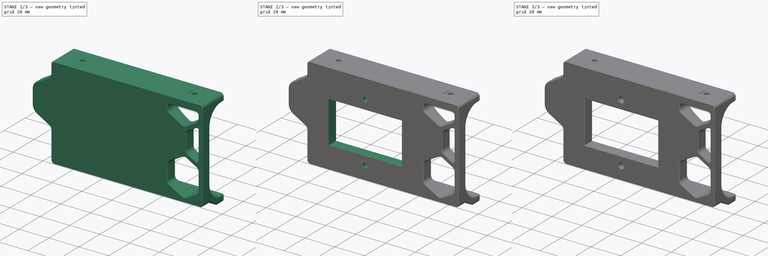
[diagram: build sequence overview — one tinted view per stage of 3, left to right]
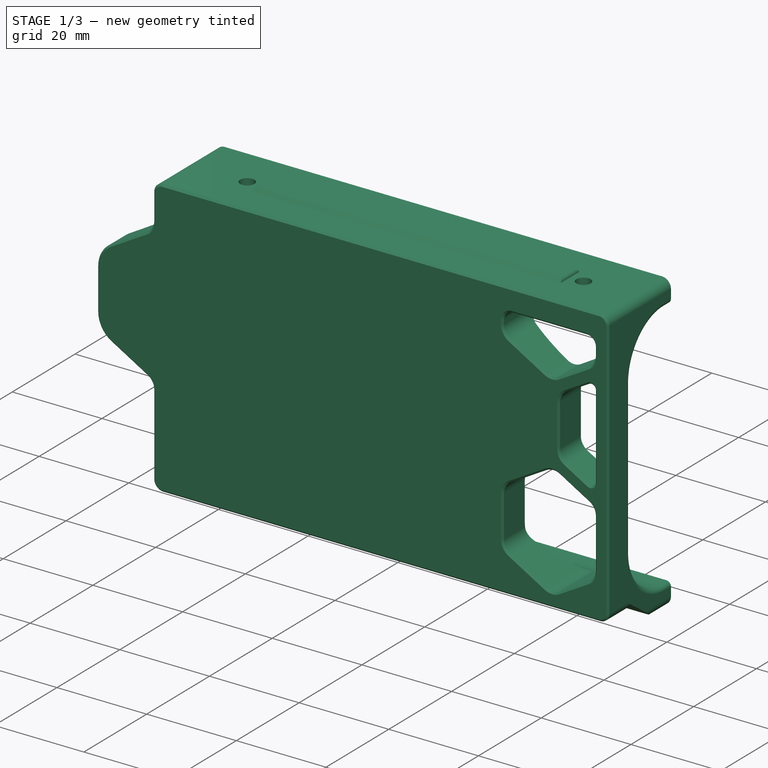
[diagram: stage 1 of 3 — iso view after this stage's code; geometry added in this stage tinted green]
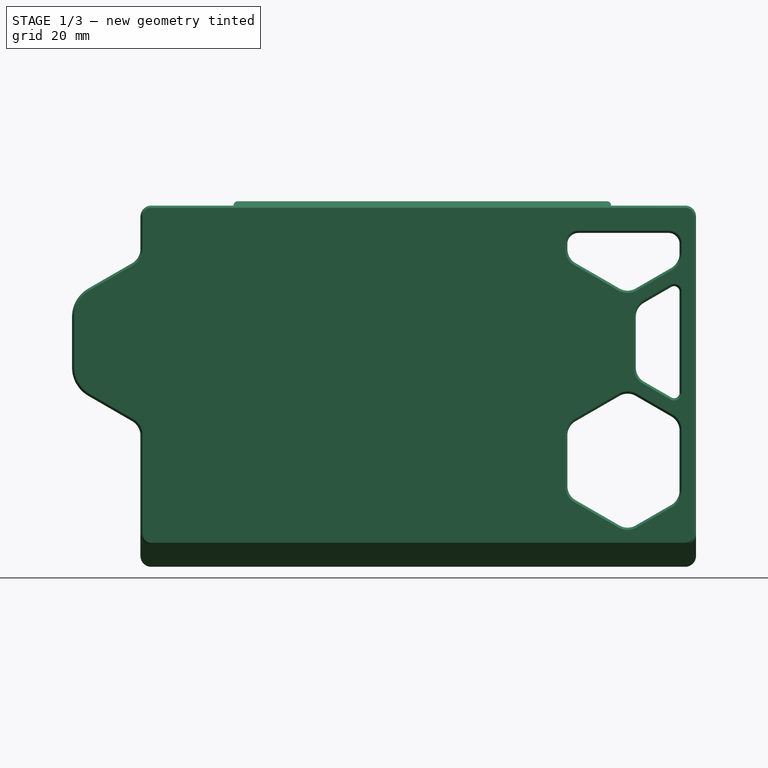
[diagram: stage 1 of 3 — front view after this stage's code; geometry added in this stage tinted green]
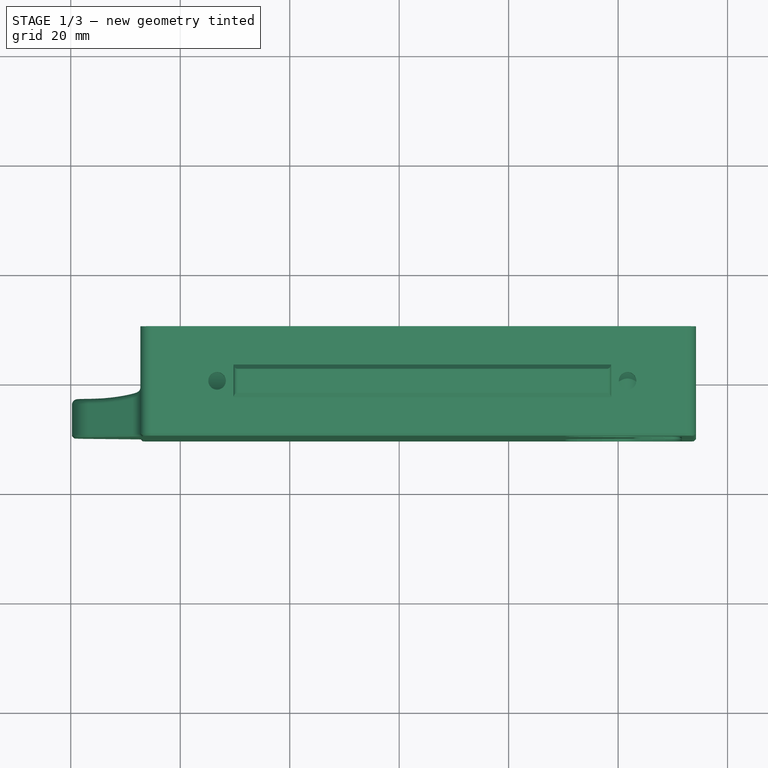
[diagram: stage 1 of 3 — top view after this stage's code; geometry added in this stage tinted green]
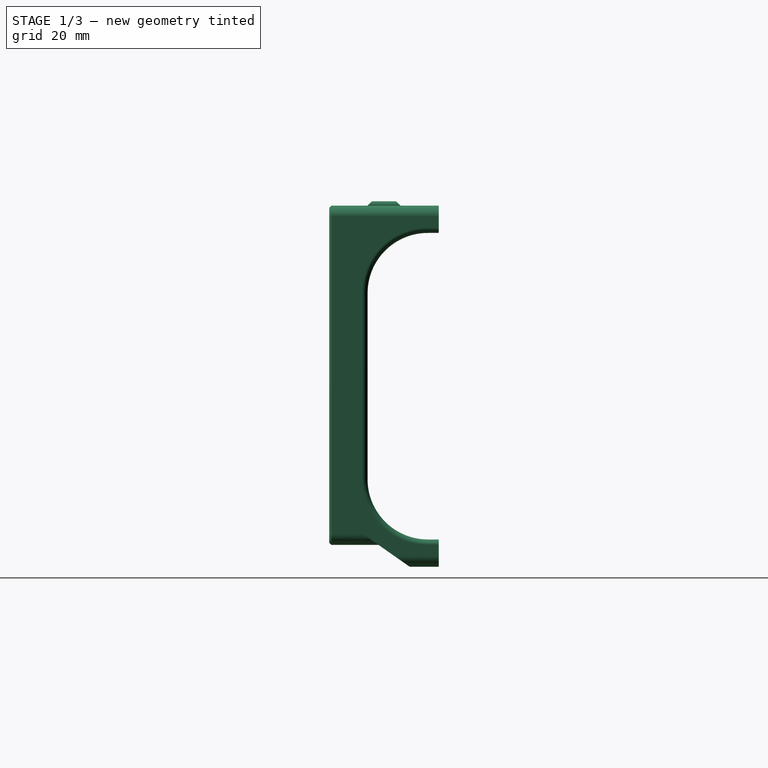
[diagram: stage 1 of 3 — right view after this stage's code; geometry added in this stage tinted green]
FCSTD DOCUMENT  (FreeCAD 1.1R20260414 (Git shallow))
Label: TridentInletSkirt
License: All rights reserved
LicenseURL: https://en.wikipedia.org/wiki/All_rights_reserved
objects: Sketcher::SketchObject×4, PartDesign::Pocket×3, PartDesign::Pad×2, Part::Feature×1, App::Point×1, PartDesign::FeatureBase×1, PartDesign::Chamfer×1, PartDesign::Body×1
note: 30 computed .brp shape members not serialized (recipe doc carries the construction recipe); baked Part::Feature solids carry a one-line shape summary decoded from their .brp

FEATURE [Part::Feature] Part__Feature1011  label="rear_skirt_power_filtered"
  shape: bbox 114.5 x 20 x 66.8 mm, 212 faces (baked)
FEATURE [App::Point] Origin001
  Role = Origin
FEATURE [PartDesign::FeatureBase] BaseFeature
  BaseFeature = -> Part__Feature1011
  Suppressed = false
FEATURE [Sketcher::SketchObject] Sketch001  label="RemoveExistingCutoutsSketch"
  ArcFitTolerance = 1e-06
  AttachmentSupport = -> [BaseFeature]
  ExternalGeometry = -> [BaseFeature]
  ExternalTypes = [0,0]
  FullyConstrained = true
  MakeInternals = false
  MapMode = 5
  Placement = pos=(-1.33711e-11,549.572,5.5e-15) rot=(1,0,0;1.5708rad)
  _ExternalGeoVersion = 1
  sketch-geometry (4):
    g0: LineSegment StartX=-138.674 StartY=103.334 StartZ=0 EndX=-138.674 EndY=68.0342 EndZ=0
    g1: LineSegment StartX=-138.674 StartY=68.0342 StartZ=0 EndX=-70.5743 EndY=68.0342 EndZ=0
    g2: LineSegment StartX=-70.5743 StartY=68.0342 StartZ=0 EndX=-70.5743 EndY=103.334 EndZ=0
    g3: LineSegment StartX=-70.5743 StartY=103.334 StartZ=0 EndX=-138.674 EndY=103.334 EndZ=0
  constraints (10):
    c: Coincident(g0,g1)
    c: Coincident(g1,g2)
    c: Coincident(g2,g3)
    c: Coincident(g3,g0)
    c: Vertical(g2)
    c: Horizontal(g1)
    c: Horizontal(g3)
    c: Coincident(g0,g-4)
    c: Coincident(g0,g-4)
    c: Tangent(g-3,g2)
FEATURE [PartDesign::Pad] Pad  label="RemoveExistingCutoutsPad"
  BaseFeature = -> BaseFeature
  Direction = (2.43e-14,-1,2e-16)
  Length = 7
  Length2 = 10
  Profile = -> Sketch001
  ReferenceAxis = -> Sketch001 [N_Axis]
  Refine = true
  Reversed = true
  SideType = 0
  Suppressed = false
  Type = 0
  Type2 = 0
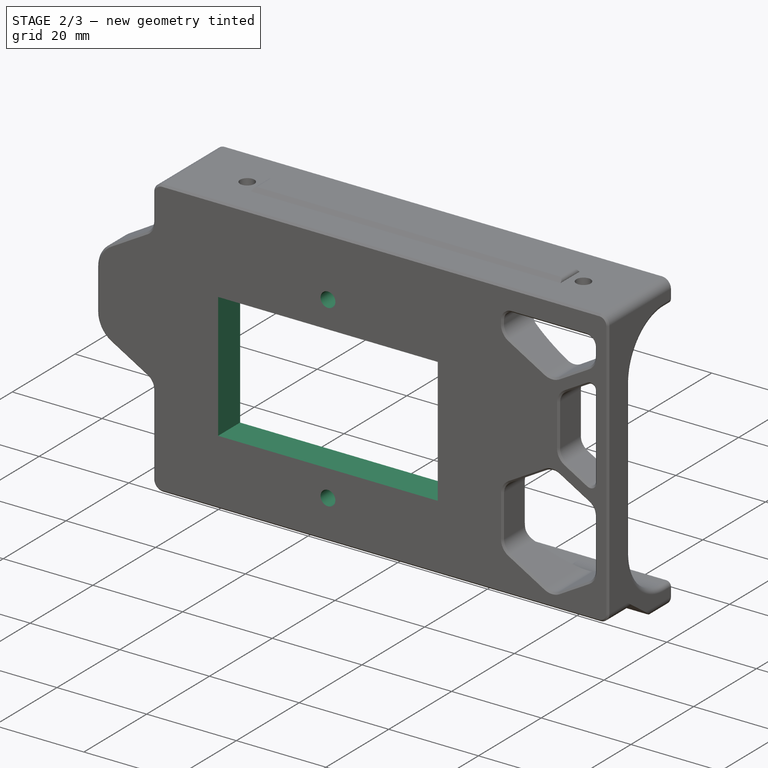
[diagram: stage 2 of 3 — iso view after this stage's code; geometry added in this stage tinted green]
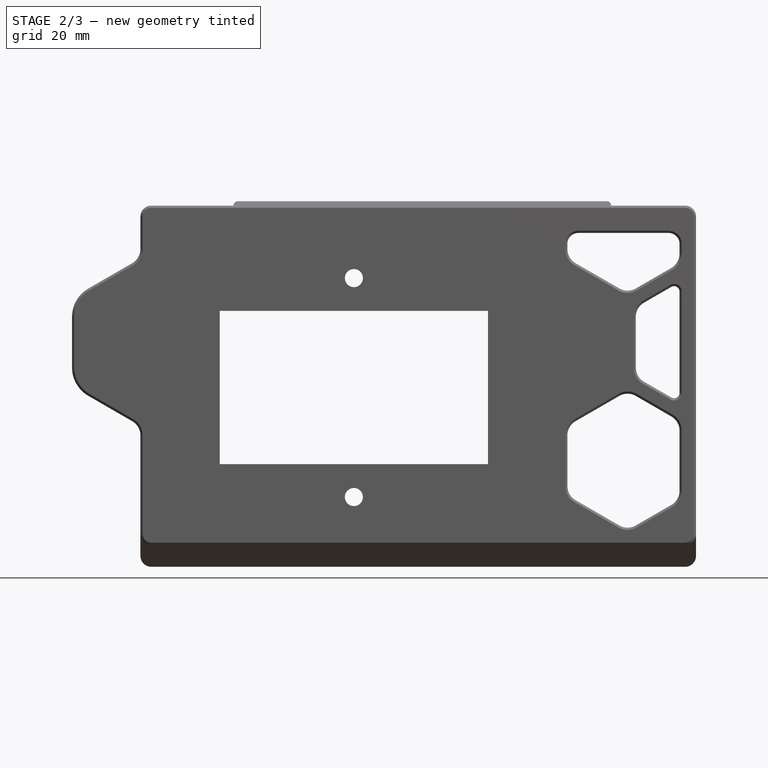
[diagram: stage 2 of 3 — front view after this stage's code; geometry added in this stage tinted green]
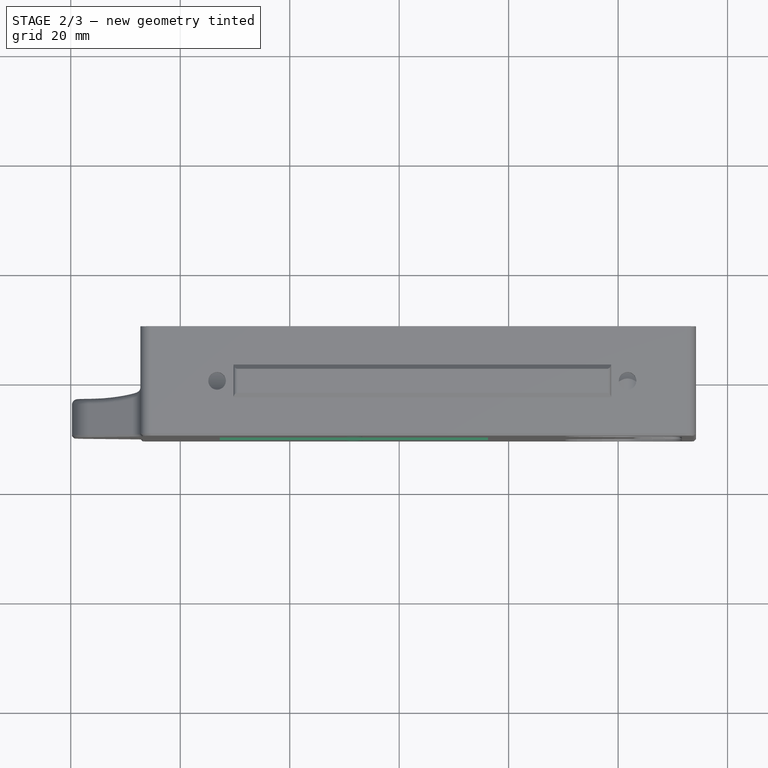
[diagram: stage 2 of 3 — top view after this stage's code; geometry added in this stage tinted green]
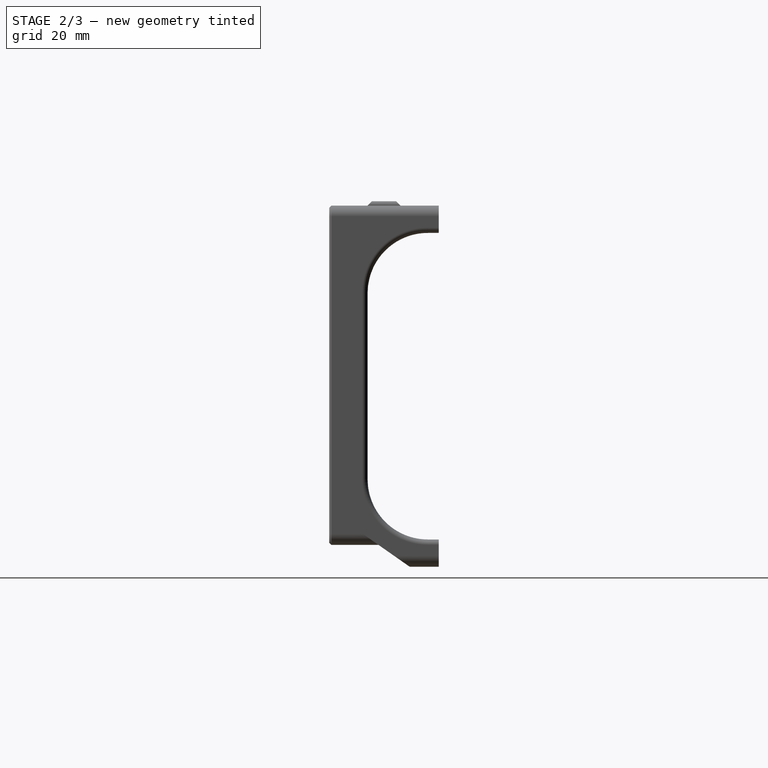
[diagram: stage 2 of 3 — right view after this stage's code; geometry added in this stage tinted green]
FEATURE [Sketcher::SketchObject] Sketch  label="InletCutoutSketch"
  ArcFitTolerance = 1e-06
  AttachmentSupport = -> [Pad]
  ExternalGeometry = -> [Pad]
  ExternalTypes = [0,0]
  FullyConstrained = true
  MakeInternals = false
  MapMode = 5
  Placement = pos=(-2.98879e-11,556.572,-1.7276e-11) rot=(0,0.707107,0.707107;3.14159rad)
  _ExternalGeoVersion = 1
  sketch-geometry (6):
    g0: Circle CenterX=108.274 CenterY=105.434 CenterZ=0 NormalX=0 NormalY=0 NormalZ=1 AngleXU=0 Radius=1.65
    g1: Circle CenterX=108.274 CenterY=65.4341 CenterZ=0 NormalX=0 NormalY=0 NormalZ=1 AngleXU=0 Radius=1.65
    g2: LineSegment StartX=132.774 StartY=99.4341 StartZ=0 EndX=83.7743 EndY=99.4341 EndZ=0
    g3: LineSegment StartX=83.7743 StartY=99.4341 StartZ=0 EndX=83.7743 EndY=71.4341 EndZ=0
    g4: LineSegment StartX=83.7743 StartY=71.4341 StartZ=0 EndX=132.774 EndY=71.4341 EndZ=0
    g5: LineSegment StartX=132.774 StartY=71.4341 StartZ=0 EndX=132.774 EndY=99.4341 EndZ=0
  constraints (18):
    c: Vertical(g1,g0)
    c: Diameter(g0) = 3.3
    c: DistanceY(g1,g0) = 40
    c: Equal(g0,g1)
    c: Horizontal(g2)
    c: Vertical(g3)
    c: Horizontal(g4)
    c: Coincident(g5,g4)
    c: Coincident(g5,g2)
    c: Vertical(g5)
    c: DistanceY(g5,g5) = 28
    c: DistanceX(g3,g2) = 49
    c: DistanceX(g0,g2) = 24.5
    c: Distance(g0,g2) = 6
    c: Coincident(g2,g3)
    c: Coincident(g4,g3)
    c: DistanceX(g4,g-3) = 13.5
    c: DistanceY(g-3,g4) = 2.75
FEATURE [Sketcher::SketchObject] Sketch002  label="AddInletSupportSketch"
  ArcFitTolerance = 1e-06
  AttachmentSupport = -> [Pad]
  ExternalGeometry = -> [Pad]
  ExternalTypes = [0]
  FullyConstrained = true
  MakeInternals = false
  MapMode = 5
  Placement = pos=(-2.98879e-11,556.572,-1.7276e-11) rot=(0,0.707107,0.707107;3.14159rad)
  _ExternalGeoVersion = 1
  sketch-geometry (6):
    g0: LineSegment StartX=108.274 StartY=110.434 StartZ=0 EndX=138.024 EndY=99.1841 EndZ=0
    g1: LineSegment StartX=138.024 StartY=99.1841 StartZ=0 EndX=138.024 EndY=72.1841 EndZ=0
    g2: LineSegment StartX=138.024 StartY=72.1841 StartZ=0 EndX=108.274 EndY=60.9341 EndZ=0
    g3: LineSegment StartX=108.274 StartY=60.9341 StartZ=0 EndX=78.5243 EndY=72.1841 EndZ=0
    g4: LineSegment StartX=78.5243 StartY=72.1841 StartZ=0 EndX=78.5243 EndY=99.1841 EndZ=0
    g5: LineSegment StartX=78.5243 StartY=99.1841 StartZ=0 EndX=108.274 EndY=110.434 EndZ=0
  constraints (18):
    c: Coincident(g1,g0)
    c: Coincident(g2,g1)
    c: Coincident(g3,g2)
    c: Coincident(g4,g3)
    c: Vertical(g4)
    c: Coincident(g5,g4)
    c: Coincident(g5,g0)
    c: Vertical(g1)
    c: Horizontal(g0,g4)
    c: Horizontal(g3,g1)
    c: DistanceY(g2,g0) = 49.5
    c: Equal(g3,g2)
    c: Vertical(g0,g2)
    c: DistanceX(g4,g0) = 59.5
    c: Parallel(g0,g3)
    c: DistanceY(g1,g1) = 27
    c: DistanceX(g1,g-3) = 8.25
    c: DistanceY(g-3,g1) = 3.5
FEATURE [PartDesign::Pad] Pad001  label="AddInletSupportPad"
  BaseFeature = -> Pad
  Direction = (-5.37e-14,1,-3.13e-14)
  Length = 7
  Length2 = 10
  Profile = -> Sketch002
  ReferenceAxis = -> Sketch002 [N_Axis]
  Refine = true
  Reversed = true
  SideType = 0
  Suppressed = false
  Type = 0
  Type2 = 0
FEATURE [PartDesign::Pocket] Pocket  label="ClearInletSupportPocket"
  BaseFeature = -> Pad001
  Direction = (5.37e-14,-1,3.13e-14)
  Length = 5
  Length2 = 5
  Profile = -> Sketch002
  ReferenceAxis = -> Sketch002 [N_Axis]
  Refine = true
  Reversed = true
  SideType = 0
  Suppressed = false
  Type = 1
  Type2 = 0
FEATURE [PartDesign::Pocket] Pocket001  label="InletCutoutPocket"
  BaseFeature = -> Pocket
  Direction = (5.37e-14,-1,3.13e-14)
  Length = 5
  Length2 = 5
  Profile = -> Sketch
  ReferenceAxis = -> Sketch [N_Axis]
  Refine = true
  SideType = 0
  Suppressed = false
  Type = 1
  Type2 = 0
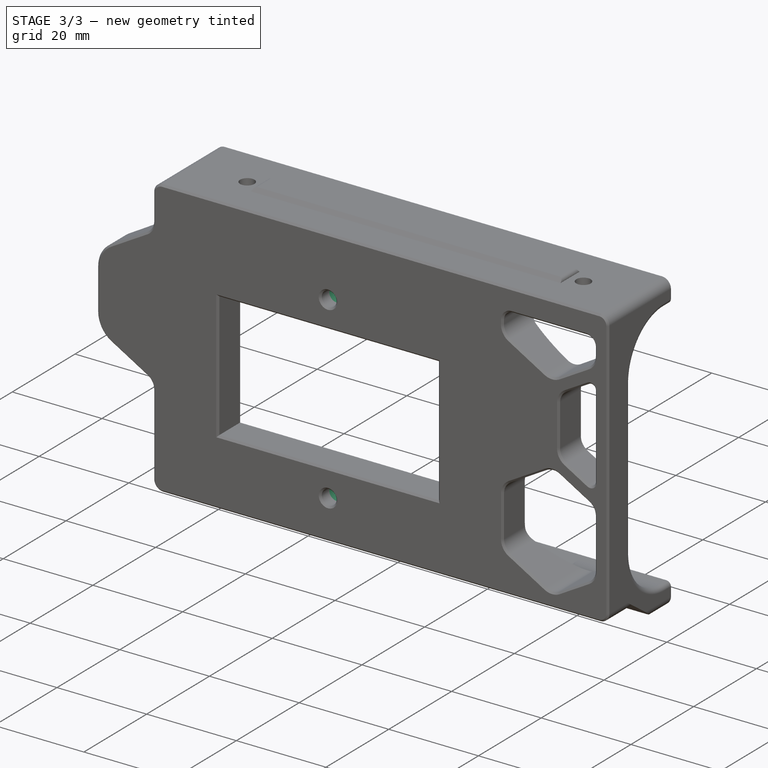
[diagram: stage 3 of 3 — iso view after this stage's code; geometry added in this stage tinted green]
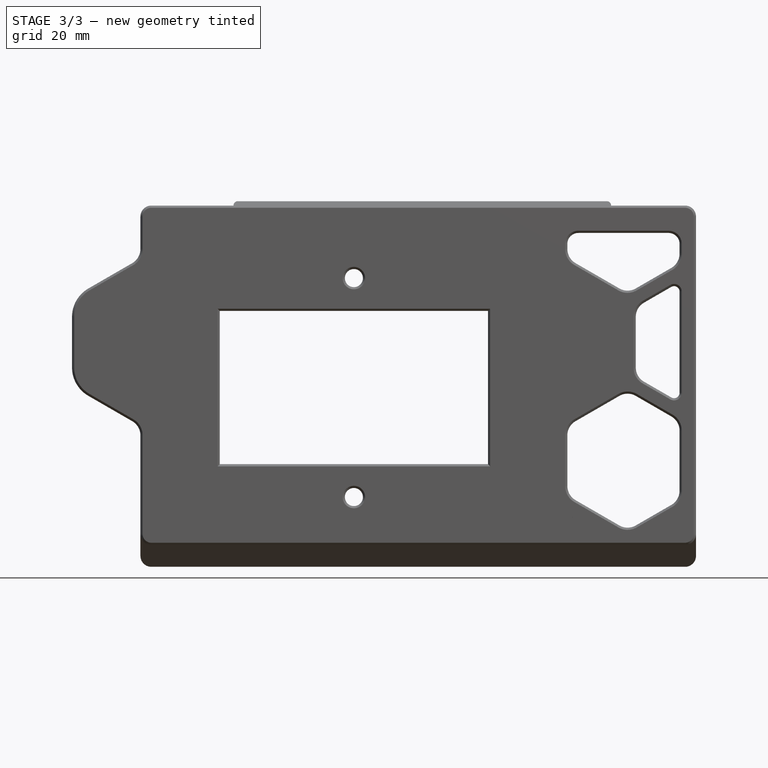
[diagram: stage 3 of 3 — front view after this stage's code; geometry added in this stage tinted green]
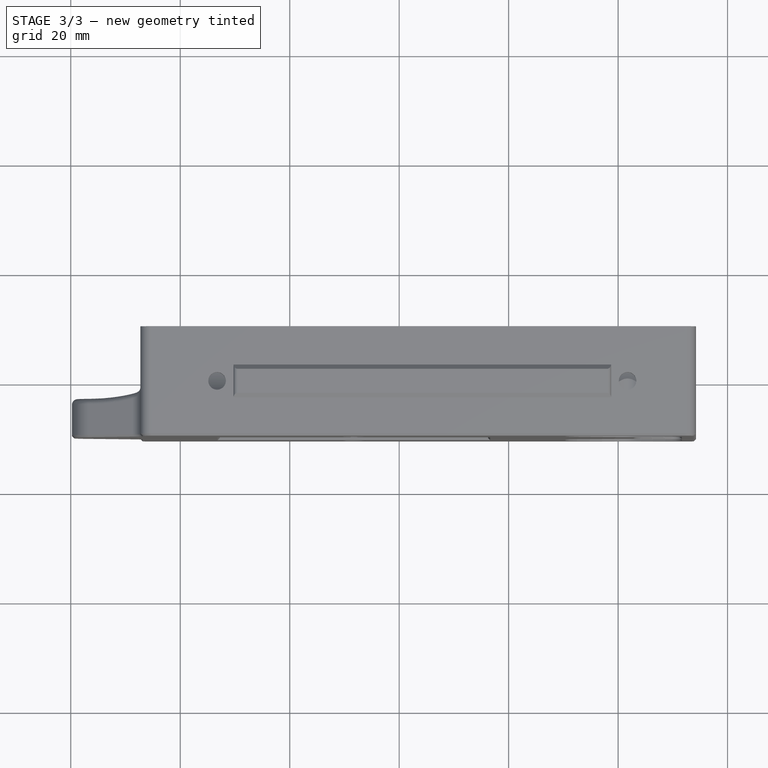
[diagram: stage 3 of 3 — top view after this stage's code; geometry added in this stage tinted green]
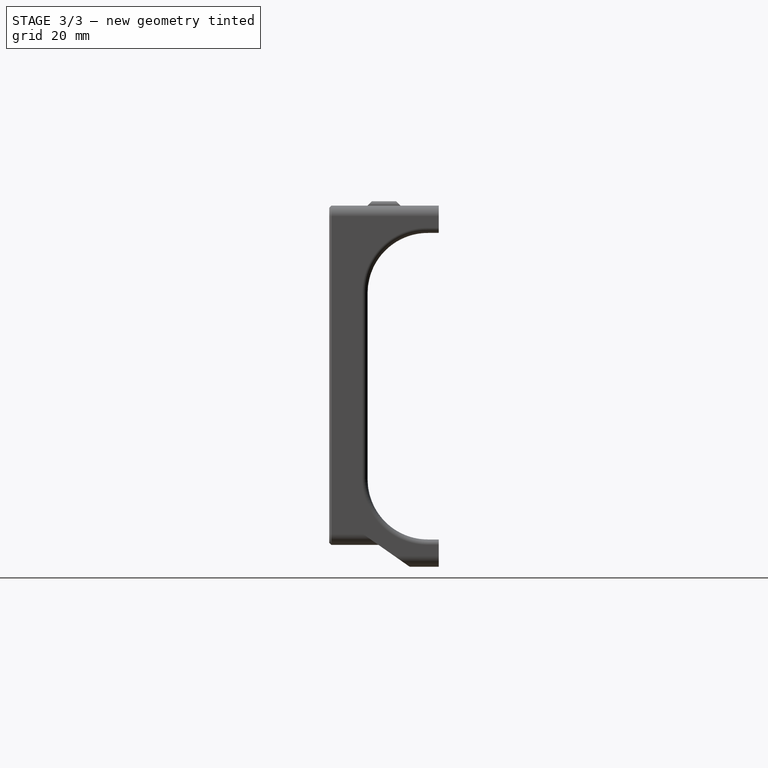
[diagram: stage 3 of 3 — right view after this stage's code; geometry added in this stage tinted green]
FEATURE [Sketcher::SketchObject] Sketch003  label="HeatsetInsertSketch"
  ArcFitTolerance = 1e-06
  AttachmentSupport = -> [Pocket001]
  ExternalGeometry = -> [Pocket001]
  ExternalTypes = [0,0]
  FullyConstrained = true
  MakeInternals = false
  MapMode = 5
  Placement = pos=(-3.00883e-11,556.572,-1.46768e-11) rot=(0,0.707107,0.707107;3.14159rad)
  _ExternalGeoVersion = 1
  sketch-geometry (2):
    g0: Circle CenterX=108.274 CenterY=105.434 CenterZ=0 NormalX=0 NormalY=0 NormalZ=1 AngleXU=0 Radius=2.35
    g1: Circle CenterX=108.274 CenterY=65.4341 CenterZ=0 NormalX=0 NormalY=0 NormalZ=1 AngleXU=0 Radius=2.35
  constraints (4):
    c: Coincident(g0,g-3)
    c: Coincident(g1,g-4)
    c: Diameter(g0) = 4.7
    c: Equal(g0,g1)
FEATURE [PartDesign::Pocket] Pocket002  label="HeatsetInsertPocket"
  BaseFeature = -> Pocket001
  Direction = (5.41e-14,-1,2.65e-14)
  Length = 4.2
  Length2 = 5
  Profile = -> Sketch003
  ReferenceAxis = -> Sketch003 [N_Axis]
  Refine = true
  SideType = 0
  Suppressed = false
  Type = 0
  Type2 = 0
FEATURE [PartDesign::Chamfer] Chamfer  label="BottomFeaturesChamfer"
  Angle = 45
  Base = -> Pocket002 [Edge59,Edge62,Edge61,Edge60,Edge46,Edge63]
  BaseFeature = -> Pocket002
  ChamferType = 0
  FlipDirection = false
  Refine = true
  Size = 0.4
  Size2 = 1
  SupportTransform = false
  Suppressed = false
  UseAllEdges = false
FEATURE [PartDesign::Body] Body  label="Ender3"
  AllowCompound = true
  BaseFeature = -> Part__Feature1011
  Group = -> [BaseFeature,Sketch001,Pad,Sketch,Sketch002,Pad001,Pocket,Pocket001,Sketch003,Pocket002,Chamfer]
  Origin = -> Origin
  Placement = pos=(160,120.5,-549.5) rot=(1,0,0;1.5708rad)
  Tip = -> Chamfer
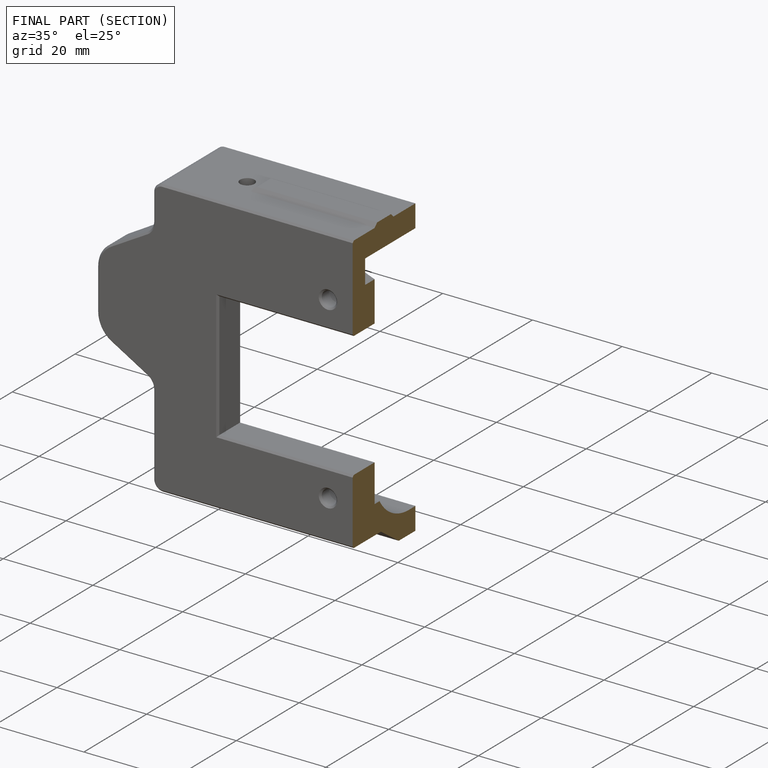
[diagram: finished part — half-section view (interior)]
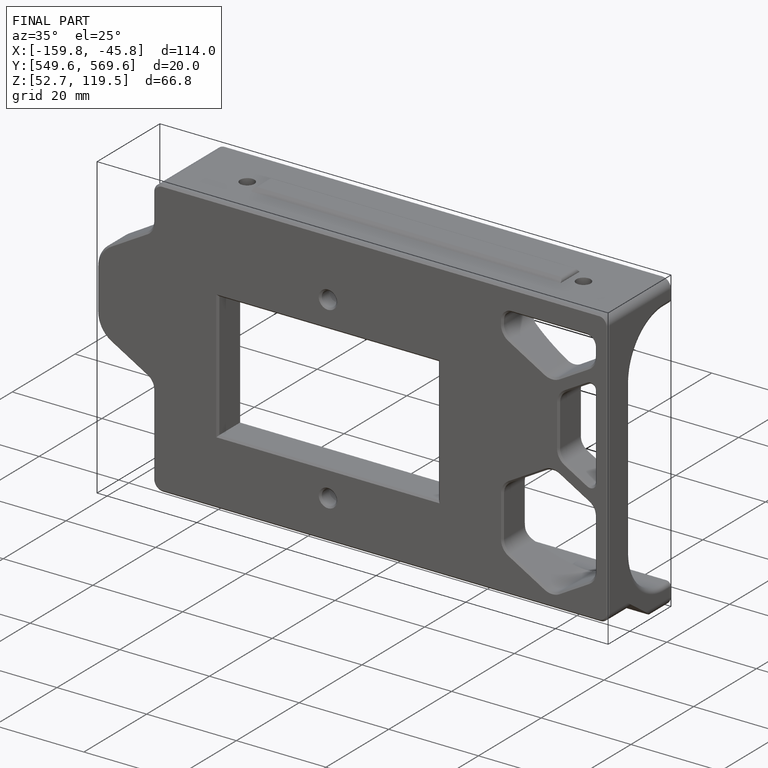
[diagram: finished part — iso view with bounding-box wireframe]
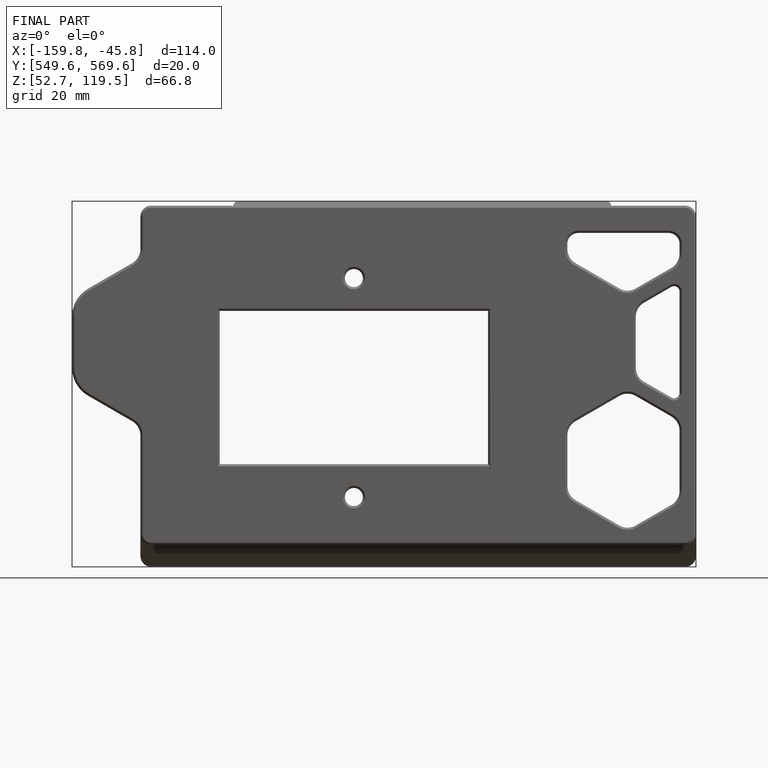
[diagram: finished part — front view with bounding-box wireframe]
